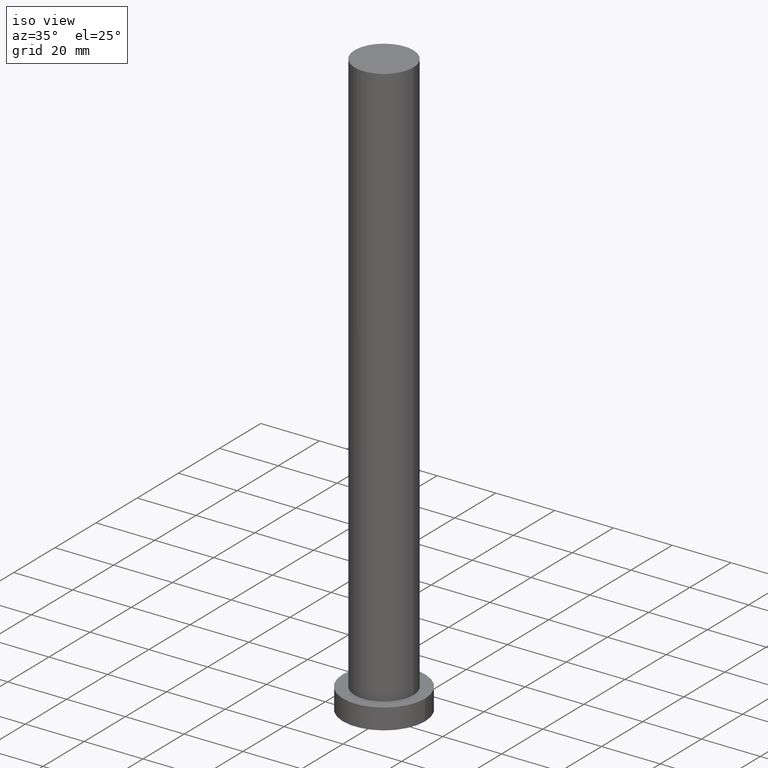
[diagram: clean part render]
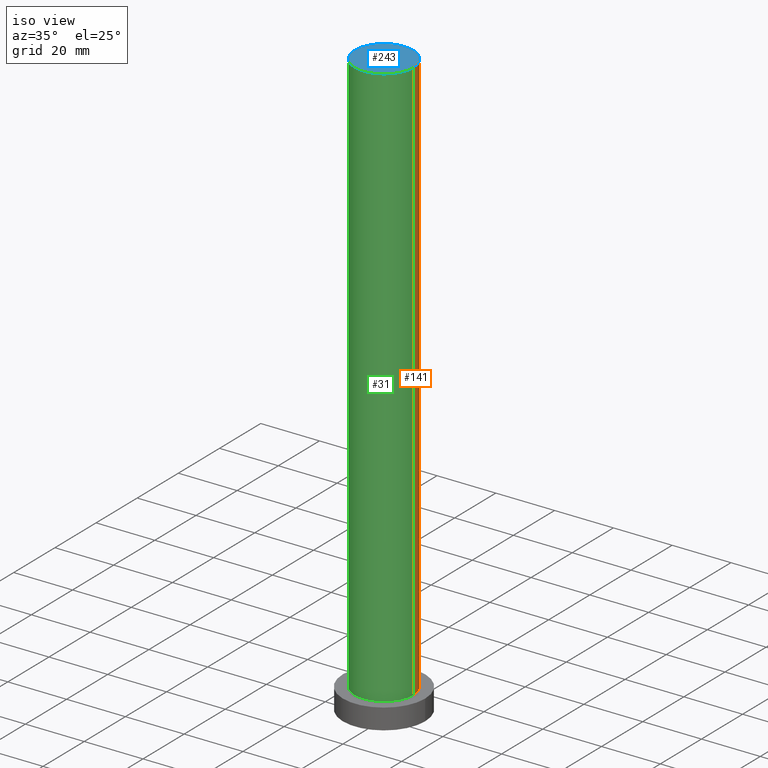
[diagram: same view with three faces highlighted in distinct colors, each labeled with its STEP entity id]
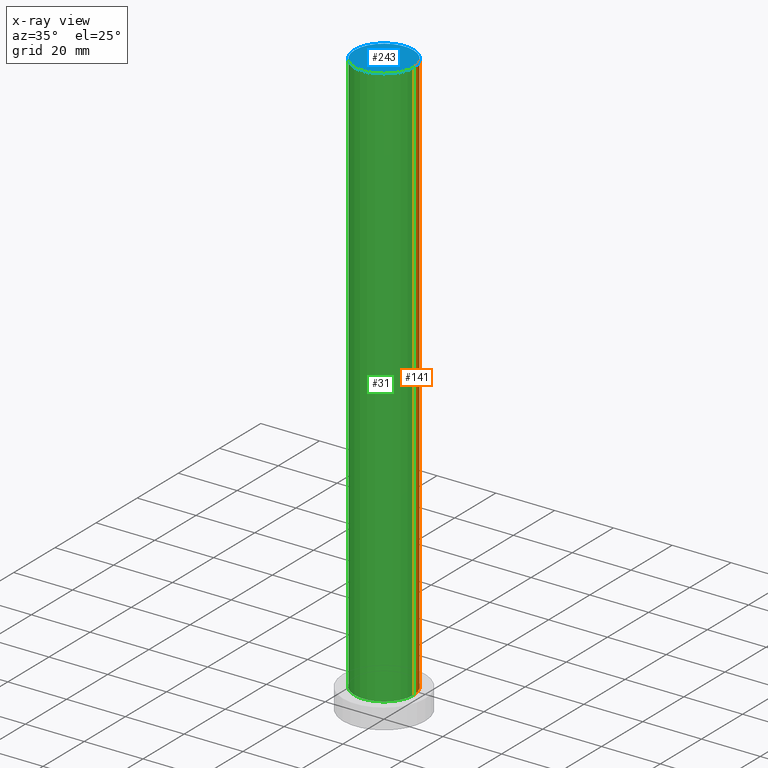
[diagram: x-ray of the same camera — body ghosted, the three highlighted faces saturated]
A machine part, iso view with three faces highlighted in distinct colors.
The next image is the same camera in x-ray (body ghosted, the three faces saturated) — at least one of them is partly hidden behind the body in this view.
Their STEP definitions:

[orange] entity #141 — the highlighted cylindrical surface (edge-blend (fillet) strip) has radius 10 mm, axis along (-0, -0, -1).
#2 = AXIS2_PLACEMENT_3D ( 'NONE', #134, #241, #43 ) ;
#3 = EDGE_CURVE ( 'NONE', #47, #229, #73, .T. ) ;
#5 = CIRCLE ( 'NONE', #2, 10.00000000000000000 ) ;
#7 = DIRECTION ( 'NONE',  ( -1.000000000000000000, 0.000000000000000000, 0.000000000000000000 ) ) ;
#8 = CARTESIAN_POINT ( 'NONE',  ( -10.00000000000000000, 0.000000000000000000, 200.0000000000000000 ) ) ;
#9 = LINE ( 'NONE', #8, #37 ) ;
#10 = CARTESIAN_POINT ( 'NONE',  ( 10.00000000000000000, 1.224646799147353256E-15, 7.000000000000000000 ) ) ;
#13 = EDGE_CURVE ( 'NONE', #150, #47, #203, .T. ) ;
#18 = EDGE_CURVE ( 'NONE', #150, #178, #5, .T. ) ;
#28 = CARTESIAN_POINT ( 'NONE',  ( 10.00000000000000000, 1.224646799147353256E-15, 200.0000000000000000 ) ) ;
#30 = CARTESIAN_POINT ( 'NONE',  ( -10.00000000000000000, 0.000000000000000000, 200.0000000000000000 ) ) ;
#37 = VECTOR ( 'NONE', #75, 1000.000000000000000 ) ;
#39 = ORIENTED_EDGE ( 'NONE', *, *, #18, .F. ) ;
#42 = FACE_OUTER_BOUND ( 'NONE', #254, .T. ) ;
#43 = DIRECTION ( 'NONE',  ( 1.000000000000000000, 0.000000000000000000, 0.000000000000000000 ) ) ;
#44 = DIRECTION ( 'NONE',  ( 1.000000000000000000, 0.000000000000000000, 0.000000000000000000 ) ) ;
#47 = VERTEX_POINT ( 'NONE', #10 ) ;
#73 = CIRCLE ( 'NONE', #234, 10.00000000000000000 ) ;
#75 = DIRECTION ( 'NONE',  ( -0.000000000000000000, -0.000000000000000000, -1.000000000000000000 ) ) ;
#84 = ORIENTED_EDGE ( 'NONE', *, *, #3, .T. ) ;
#120 = CARTESIAN_POINT ( 'NONE',  ( 0.000000000000000000, 0.000000000000000000, 200.0000000000000000 ) ) ;
#123 = CARTESIAN_POINT ( 'NONE',  ( -10.00000000000000000, 0.000000000000000000, 7.000000000000000000 ) ) ;
#134 = CARTESIAN_POINT ( 'NONE',  ( 0.000000000000000000, 0.000000000000000000, 200.0000000000000000 ) ) ;
#141 = ADVANCED_FACE ( 'NONE', ( #42 ), #227, .T. ) ;
#150 = VERTEX_POINT ( 'NONE', #205 ) ;
#157 = DIRECTION ( 'NONE',  ( -0.000000000000000000, -0.000000000000000000, -1.000000000000000000 ) ) ;
#163 = AXIS2_PLACEMENT_3D ( 'NONE', #120, #186, #7 ) ;
#172 = EDGE_CURVE ( 'NONE', #178, #229, #9, .T. ) ;
#173 = ORIENTED_EDGE ( 'NONE', *, *, #13, .T. ) ;
#178 = VERTEX_POINT ( 'NONE', #30 ) ;
#186 = DIRECTION ( 'NONE',  ( -0.000000000000000000, -0.000000000000000000, -1.000000000000000000 ) ) ;
#203 = LINE ( 'NONE', #28, #228 ) ;
#205 = CARTESIAN_POINT ( 'NONE',  ( 10.00000000000000000, 1.224646799147353256E-15, 200.0000000000000000 ) ) ;
#209 = DIRECTION ( 'NONE',  ( 0.000000000000000000, 0.000000000000000000, 1.000000000000000000 ) ) ;
#218 = ORIENTED_EDGE ( 'NONE', *, *, #172, .F. ) ;
#226 = CARTESIAN_POINT ( 'NONE',  ( 0.000000000000000000, 0.000000000000000000, 7.000000000000000000 ) ) ;
#227 = CYLINDRICAL_SURFACE ( 'NONE', #163, 10.00000000000000000 ) ;
#228 = VECTOR ( 'NONE', #157, 1000.000000000000000 ) ;
#229 = VERTEX_POINT ( 'NONE', #123 ) ;
#234 = AXIS2_PLACEMENT_3D ( 'NONE', #226, #209, #44 ) ;
#241 = DIRECTION ( 'NONE',  ( 0.000000000000000000, 0.000000000000000000, 1.000000000000000000 ) ) ;
#254 = EDGE_LOOP ( 'NONE', ( #39, #173, #84, #218 ) ) ;

[blue] entity #243 — the highlighted planar face has unit normal (0, 0, 1).
#2 = AXIS2_PLACEMENT_3D ( 'NONE', #134, #241, #43 ) ;
#5 = CIRCLE ( 'NONE', #2, 10.00000000000000000 ) ;
#14 = AXIS2_PLACEMENT_3D ( 'NONE', #93, #239, #118 ) ;
#18 = EDGE_CURVE ( 'NONE', #150, #178, #5, .T. ) ;
#30 = CARTESIAN_POINT ( 'NONE',  ( -10.00000000000000000, 0.000000000000000000, 200.0000000000000000 ) ) ;
#33 = PLANE ( 'NONE',  #137 ) ;
#40 = EDGE_CURVE ( 'NONE', #178, #150, #114, .T. ) ;
#43 = DIRECTION ( 'NONE',  ( 1.000000000000000000, 0.000000000000000000, 0.000000000000000000 ) ) ;
#65 = DIRECTION ( 'NONE',  ( 1.000000000000000000, 0.000000000000000000, -0.000000000000000000 ) ) ;
#72 = EDGE_LOOP ( 'NONE', ( #248, #88 ) ) ;
#88 = ORIENTED_EDGE ( 'NONE', *, *, #18, .T. ) ;
#93 = CARTESIAN_POINT ( 'NONE',  ( 0.000000000000000000, 0.000000000000000000, 200.0000000000000000 ) ) ;
#114 = CIRCLE ( 'NONE', #14, 10.00000000000000000 ) ;
#118 = DIRECTION ( 'NONE',  ( 1.000000000000000000, 0.000000000000000000, 0.000000000000000000 ) ) ;
#124 = FACE_OUTER_BOUND ( 'NONE', #72, .T. ) ;
#134 = CARTESIAN_POINT ( 'NONE',  ( 0.000000000000000000, 0.000000000000000000, 200.0000000000000000 ) ) ;
#137 = AXIS2_PLACEMENT_3D ( 'NONE', #190, #249, #65 ) ;
#150 = VERTEX_POINT ( 'NONE', #205 ) ;
#178 = VERTEX_POINT ( 'NONE', #30 ) ;
#190 = CARTESIAN_POINT ( 'NONE',  ( 0.000000000000000000, 0.000000000000000000, 200.0000000000000000 ) ) ;
#205 = CARTESIAN_POINT ( 'NONE',  ( 10.00000000000000000, 1.224646799147353256E-15, 200.0000000000000000 ) ) ;
#239 = DIRECTION ( 'NONE',  ( 0.000000000000000000, 0.000000000000000000, 1.000000000000000000 ) ) ;
#241 = DIRECTION ( 'NONE',  ( 0.000000000000000000, 0.000000000000000000, 1.000000000000000000 ) ) ;
#243 = ADVANCED_FACE ( 'NONE', ( #124 ), #33, .T. ) ;
#248 = ORIENTED_EDGE ( 'NONE', *, *, #40, .T. ) ;
#249 = DIRECTION ( 'NONE',  ( 0.000000000000000000, 0.000000000000000000, 1.000000000000000000 ) ) ;

[green] entity #31 — the highlighted cylindrical surface (edge-blend (fillet) strip) has radius 10 mm, axis along (-0, -0, -1).
#8 = CARTESIAN_POINT ( 'NONE',  ( -10.00000000000000000, 0.000000000000000000, 200.0000000000000000 ) ) ;
#9 = LINE ( 'NONE', #8, #37 ) ;
#10 = CARTESIAN_POINT ( 'NONE',  ( 10.00000000000000000, 1.224646799147353256E-15, 7.000000000000000000 ) ) ;
#13 = EDGE_CURVE ( 'NONE', #150, #47, #203, .T. ) ;
#14 = AXIS2_PLACEMENT_3D ( 'NONE', #93, #239, #118 ) ;
#17 = ORIENTED_EDGE ( 'NONE', *, *, #13, .F. ) ;
#25 = DIRECTION ( 'NONE',  ( 0.000000000000000000, 0.000000000000000000, 1.000000000000000000 ) ) ;
#28 = CARTESIAN_POINT ( 'NONE',  ( 10.00000000000000000, 1.224646799147353256E-15, 200.0000000000000000 ) ) ;
#30 = CARTESIAN_POINT ( 'NONE',  ( -10.00000000000000000, 0.000000000000000000, 200.0000000000000000 ) ) ;
#31 = ADVANCED_FACE ( 'NONE', ( #95 ), #119, .T. ) ;
#37 = VECTOR ( 'NONE', #75, 1000.000000000000000 ) ;
#40 = EDGE_CURVE ( 'NONE', #178, #150, #114, .T. ) ;
#45 = DIRECTION ( 'NONE',  ( -0.000000000000000000, -0.000000000000000000, -1.000000000000000000 ) ) ;
#47 = VERTEX_POINT ( 'NONE', #10 ) ;
#50 = ORIENTED_EDGE ( 'NONE', *, *, #40, .F. ) ;
#61 = DIRECTION ( 'NONE',  ( 1.000000000000000000, 0.000000000000000000, 0.000000000000000000 ) ) ;
#75 = DIRECTION ( 'NONE',  ( -0.000000000000000000, -0.000000000000000000, -1.000000000000000000 ) ) ;
#93 = CARTESIAN_POINT ( 'NONE',  ( 0.000000000000000000, 0.000000000000000000, 200.0000000000000000 ) ) ;
#95 = FACE_OUTER_BOUND ( 'NONE', #136, .T. ) ;
#100 = CIRCLE ( 'NONE', #117, 10.00000000000000000 ) ;
#114 = CIRCLE ( 'NONE', #14, 10.00000000000000000 ) ;
#117 = AXIS2_PLACEMENT_3D ( 'NONE', #138, #25, #61 ) ;
#118 = DIRECTION ( 'NONE',  ( 1.000000000000000000, 0.000000000000000000, 0.000000000000000000 ) ) ;
#119 = CYLINDRICAL_SURFACE ( 'NONE', #231, 10.00000000000000000 ) ;
#123 = CARTESIAN_POINT ( 'NONE',  ( -10.00000000000000000, 0.000000000000000000, 7.000000000000000000 ) ) ;
#136 = EDGE_LOOP ( 'NONE', ( #17, #50, #201, #176 ) ) ;
#138 = CARTESIAN_POINT ( 'NONE',  ( 0.000000000000000000, 0.000000000000000000, 7.000000000000000000 ) ) ;
#140 = CARTESIAN_POINT ( 'NONE',  ( 0.000000000000000000, 0.000000000000000000, 200.0000000000000000 ) ) ;
#150 = VERTEX_POINT ( 'NONE', #205 ) ;
#157 = DIRECTION ( 'NONE',  ( -0.000000000000000000, -0.000000000000000000, -1.000000000000000000 ) ) ;
#160 = DIRECTION ( 'NONE',  ( -1.000000000000000000, 0.000000000000000000, 0.000000000000000000 ) ) ;
#172 = EDGE_CURVE ( 'NONE', #178, #229, #9, .T. ) ;
#176 = ORIENTED_EDGE ( 'NONE', *, *, #198, .T. ) ;
#178 = VERTEX_POINT ( 'NONE', #30 ) ;
#198 = EDGE_CURVE ( 'NONE', #229, #47, #100, .T. ) ;
#201 = ORIENTED_EDGE ( 'NONE', *, *, #172, .T. ) ;
#203 = LINE ( 'NONE', #28, #228 ) ;
#205 = CARTESIAN_POINT ( 'NONE',  ( 10.00000000000000000, 1.224646799147353256E-15, 200.0000000000000000 ) ) ;
#228 = VECTOR ( 'NONE', #157, 1000.000000000000000 ) ;
#229 = VERTEX_POINT ( 'NONE', #123 ) ;
#231 = AXIS2_PLACEMENT_3D ( 'NONE', #140, #45, #160 ) ;
#239 = DIRECTION ( 'NONE',  ( 0.000000000000000000, 0.000000000000000000, 1.000000000000000000 ) ) ;